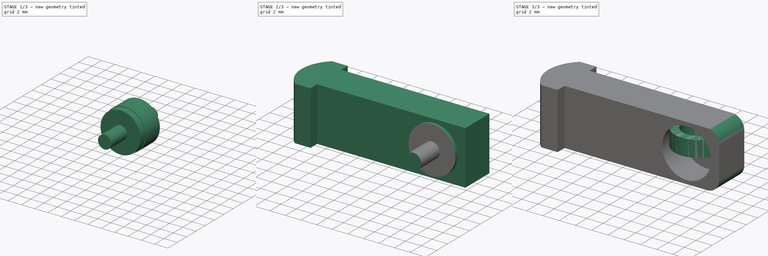
[diagram: build sequence overview — one tinted view per stage of 3, left to right]
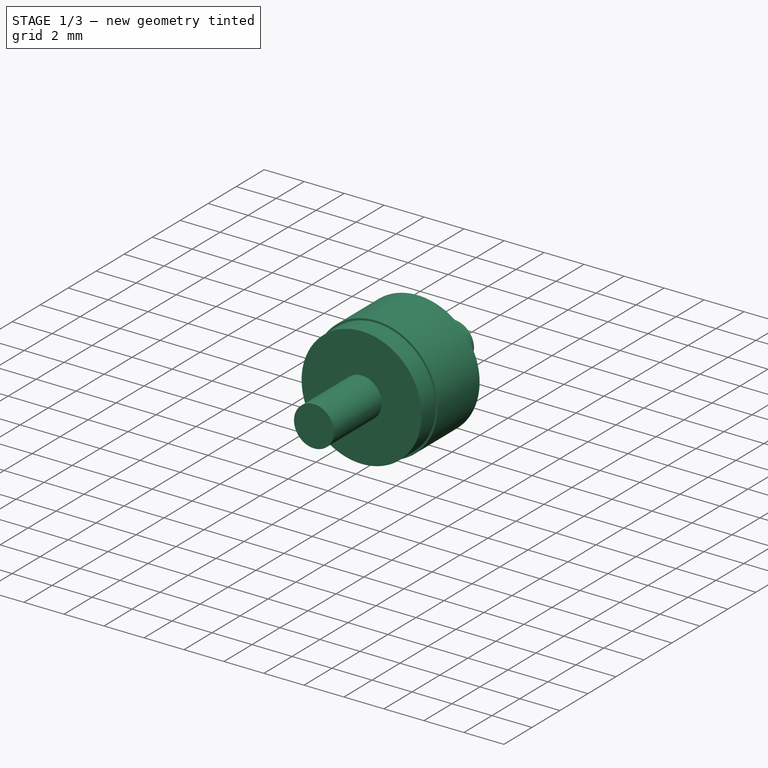
[diagram: stage 1 of 3 — iso view after this stage's code; geometry added in this stage tinted green]
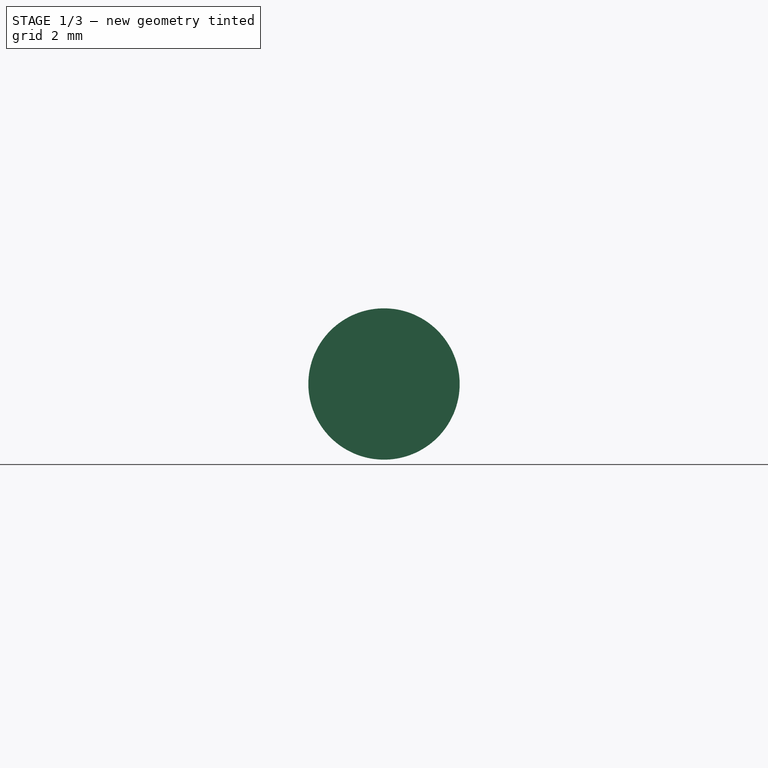
[diagram: stage 1 of 3 — front view after this stage's code; geometry added in this stage tinted green]
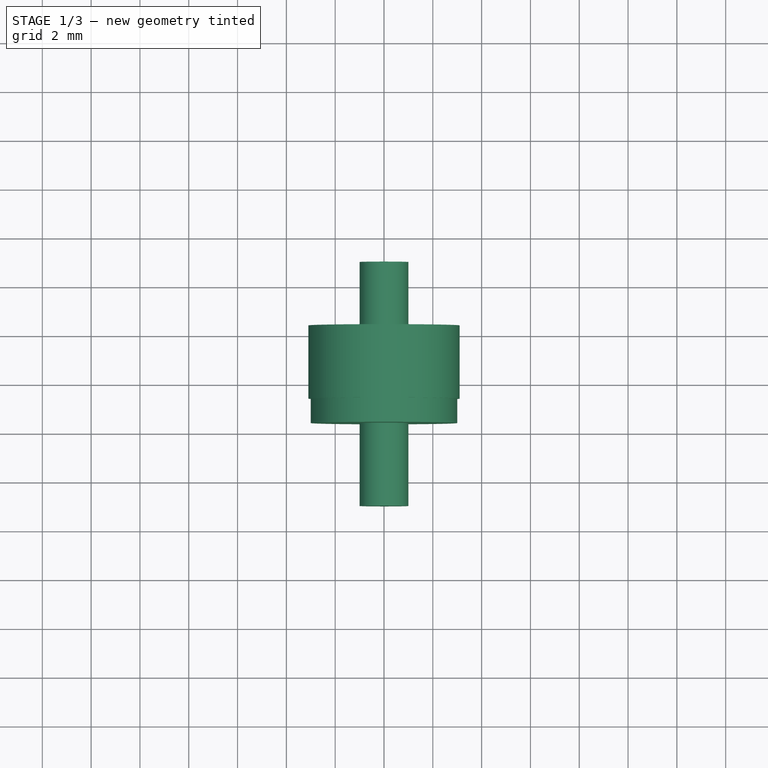
[diagram: stage 1 of 3 — top view after this stage's code; geometry added in this stage tinted green]
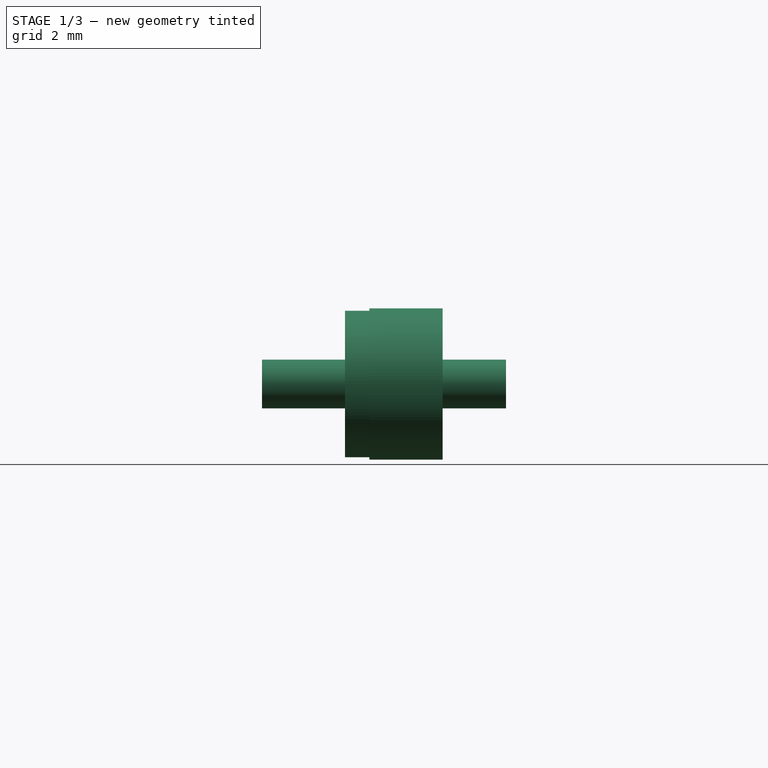
[diagram: stage 1 of 3 — right view after this stage's code; geometry added in this stage tinted green]
FCSTD DOCUMENT  (FreeCAD 0.18R15363 (Git))
Label: JackyTouchGachette
License: All rights reserved
LicenseURL: http://en.wikipedia.org/wiki/All_rights_reserved
objects: Sketcher::SketchObject×5, Part::Extrusion×5, Part::MultiFuse×1, Part::Cut×1, Part::Fillet×1
note: 13 computed .brp shape members not serialized (recipe doc carries the construction recipe); baked Part::Feature solids carry a one-line shape summary decoded from their .brp

FEATURE [Sketcher::SketchObject] Sketch001
  Placement = pos=(0,0,0) rot=(1,0,0;1.5708rad)
  sketch-geometry (1):
    g0: Circle CenterX=0 CenterY=0 CenterZ=0 NormalX=0 NormalY=0 NormalZ=1 AngleXU=0 Radius=3.1
  constraints (2):
    c: Radius(g0) = 3.1
    c: Coincident(g0,g-1)
FEATURE [Part::Extrusion] Extrude001  label="LogementAimant"
  Base = -> Sketch001
  Dir = (0,-1,0)
  DirMode = 2
  FaceMakerClass = Part::FaceMakerBullseye
  LengthFwd = 3
  LengthRev = 0
  Placement = pos=(0,0.4,0) rot=(0,0,1;0rad)
  Solid = true
  Symmetric = false
FEATURE [Sketcher::SketchObject] Sketch003
  ExternalGeometry = -> [Sketch001]
  Placement = pos=(0,0,0) rot=(1,0,0;1.5708rad)
  sketch-geometry (1):
    g0: Circle CenterX=0 CenterY=0 CenterZ=0 NormalX=0 NormalY=0 NormalZ=1 AngleXU=0 Radius=1
  constraints (2):
    c: Coincident(g0,g-3)
    c: Radius(g0) = 1
FEATURE [Part::Extrusion] Extrude003  label="PousseAimant"
  Base = -> Sketch003
  Dir = (0,-1,0)
  DirMode = 2
  FaceMakerClass = Part::FaceMakerBullseye
  LengthFwd = 10
  LengthRev = 0
  Placement = pos=(0,3,0) rot=(0,0,1;0rad)
  Solid = true
  Symmetric = false
FEATURE [Sketcher::SketchObject] Sketch004
  Placement = pos=(0,0,0) rot=(1,0,0;1.5708rad)
  sketch-geometry (1):
    g0: Circle CenterX=0 CenterY=0 CenterZ=0 NormalX=0 NormalY=0 NormalZ=1 AngleXU=0 Radius=3
  constraints (2):
    c: Coincident(g0,g-1)
    c: Radius(g0) = 3
FEATURE [Part::Extrusion] Extrude004  label="RetientAimant"
  Base = -> Sketch004
  Dir = (0,-1,2e-16)
  DirMode = 2
  FaceMakerClass = Part::FaceMakerBullseye
  LengthFwd = 1
  LengthRev = 0
  Placement = pos=(0,-2.6,0) rot=(0,0,1;0rad)
  Solid = true
  Symmetric = false
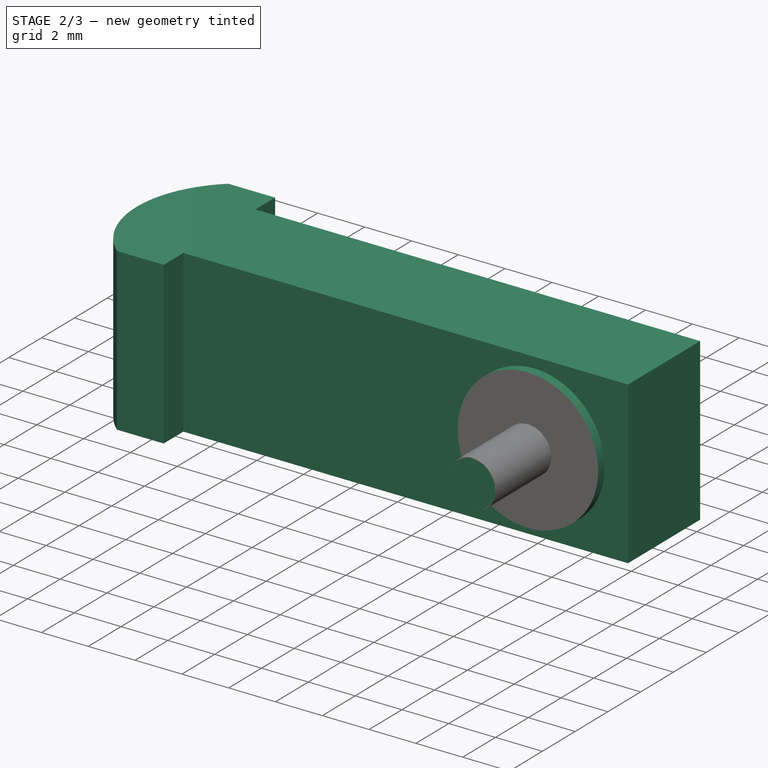
[diagram: stage 2 of 3 — iso view after this stage's code; geometry added in this stage tinted green]
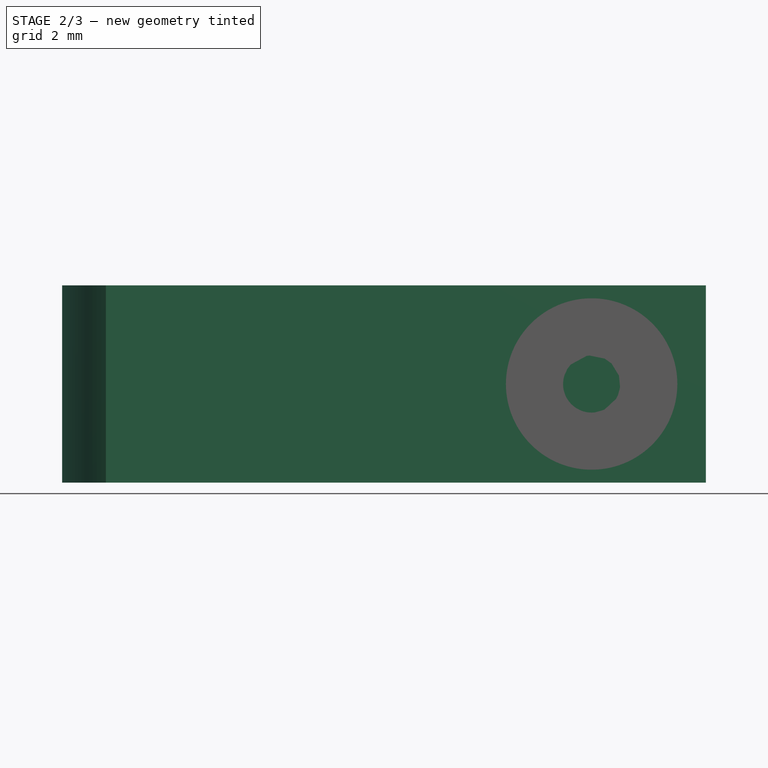
[diagram: stage 2 of 3 — front view after this stage's code; geometry added in this stage tinted green]
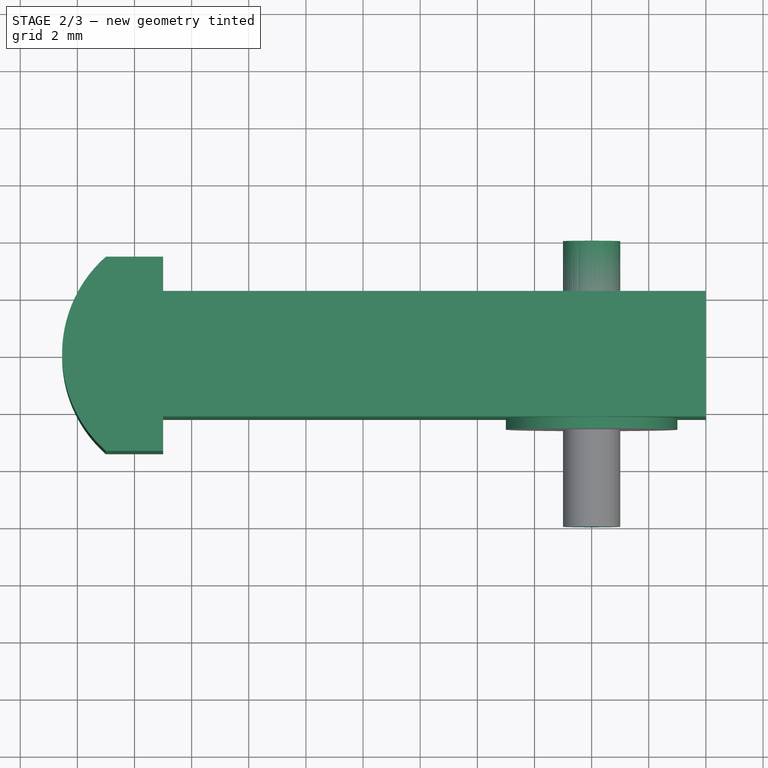
[diagram: stage 2 of 3 — top view after this stage's code; geometry added in this stage tinted green]
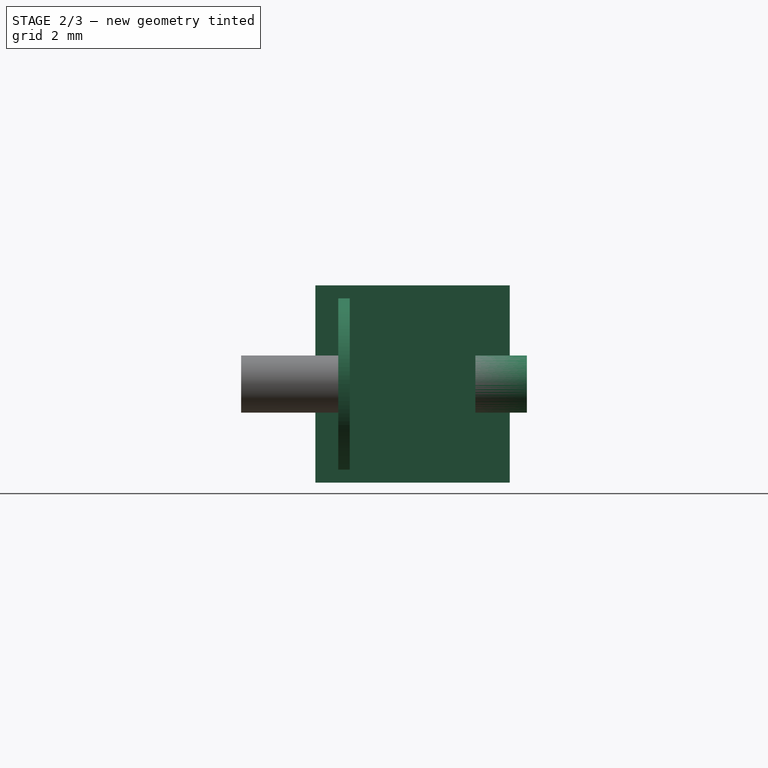
[diagram: stage 2 of 3 — right view after this stage's code; geometry added in this stage tinted green]
FEATURE [Sketcher::SketchObject] Sketch
  sketch-geometry (10):
    g0: LineSegment StartX=-15 StartY=2.2 StartZ=0 EndX=4 EndY=2.2 EndZ=0
    g1: LineSegment StartX=4 StartY=2.2 StartZ=0 EndX=4 EndY=-2.2 EndZ=0
    g2: LineSegment StartX=4 StartY=-2.2 StartZ=0 EndX=-15 EndY=-2.2 EndZ=0
    g3: LineSegment [constr] StartX=-15 StartY=-2.2 StartZ=0 EndX=-15 EndY=2.2 EndZ=0
    g4: LineSegment StartX=-15 StartY=2.2 StartZ=0 EndX=-15 EndY=3.4 EndZ=0
    g5: LineSegment StartX=-15 StartY=3.4 StartZ=0 EndX=-17 EndY=3.4 EndZ=0
    g6: LineSegment [constr] StartX=-17 StartY=3.4 StartZ=0 EndX=-17 EndY=-3.4 EndZ=0
    g7: LineSegment StartX=-17 StartY=-3.4 StartZ=0 EndX=-15 EndY=-3.4 EndZ=0
    g8: LineSegment StartX=-15 StartY=-3.4 StartZ=0 EndX=-15 EndY=-2.2 EndZ=0
    g9: ArcOfCircle CenterX=-14 CenterY=0 CenterZ=0 NormalX=0 NormalY=0 NormalZ=1 AngleXU=0 Radius=4.53431 StartAngle=2.29378 EndAngle=3.98941
  constraints (27):
    c: Coincident(g0,g1)
    c: Coincident(g1,g2)
    c: Coincident(g2,g3)
    c: Coincident(g3,g0)
    c: Horizontal(g0)
    c: Horizontal(g2)
    c: Vertical(g3)
    c: Symmetric(g1,g0,g-1)
    c: Vertical(g4)
    c: Horizontal(g5)
    c: Coincident(g6,g5)
    c: Vertical(g6)
    c: Coincident(g7,g6)
    c: Horizontal(g7)
    c: Coincident(g8,g7)
    c: Coincident(g8,g2)
    c: Coincident(g4,g0)
    c: Symmetric(g4,g7,g-1)
    c: Coincident(g5,g4)
    c: DistanceY(g1,g0) = 4.4
    c: DistanceY(g0,g4) = 1.2
    c: DistanceX(g5,g5) = 2
    c: DistanceX(g-1,g0) = 4
    c: DistanceX(g0,g-1) = 15
    c: Coincident(g9,g5)
    c: Coincident(g9,g6)
    c: DistanceX(g9) = -14
FEATURE [Part::Extrusion] Extrude  label="Body"
  Base = -> Sketch
  Dir = (0,0,1)
  DirMode = 2
  FaceMakerClass = Part::FaceMakerBullseye
  LengthFwd = 6.9
  LengthRev = 0
  Solid = true
  Symmetric = true
FEATURE [Part::MultiFuse] Fusion
  Placement = pos=(0,1,0) rot=(0,0,1;0rad)
  Shapes = -> [Extrude003,Extrude001,Extrude004]
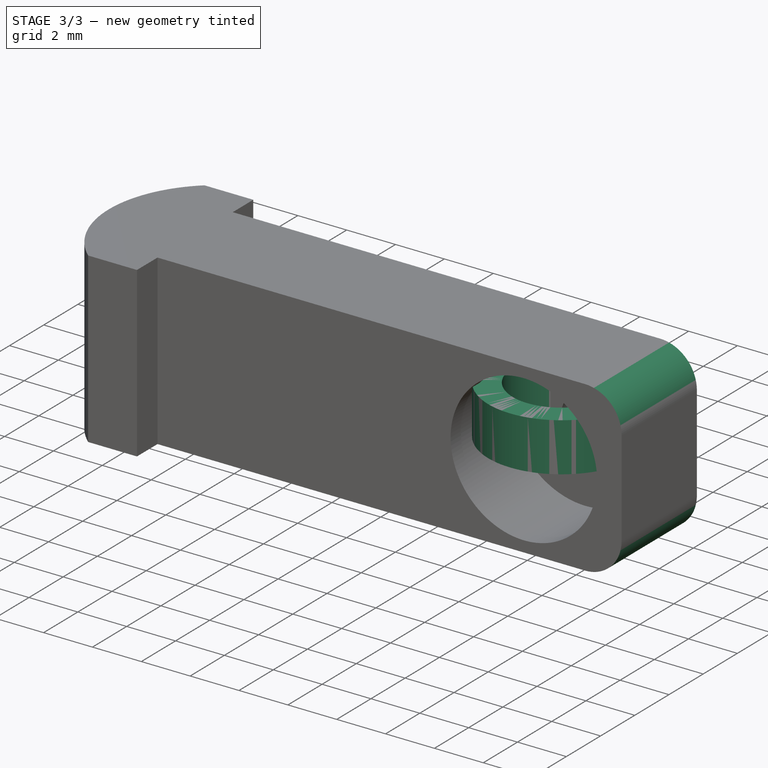
[diagram: stage 3 of 3 — iso view after this stage's code; geometry added in this stage tinted green]
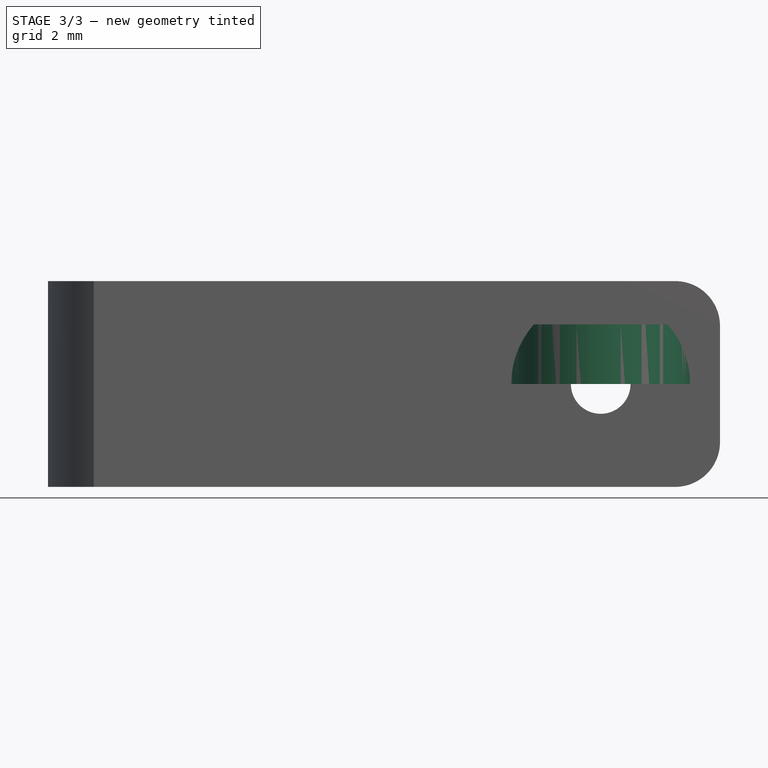
[diagram: stage 3 of 3 — front view after this stage's code; geometry added in this stage tinted green]
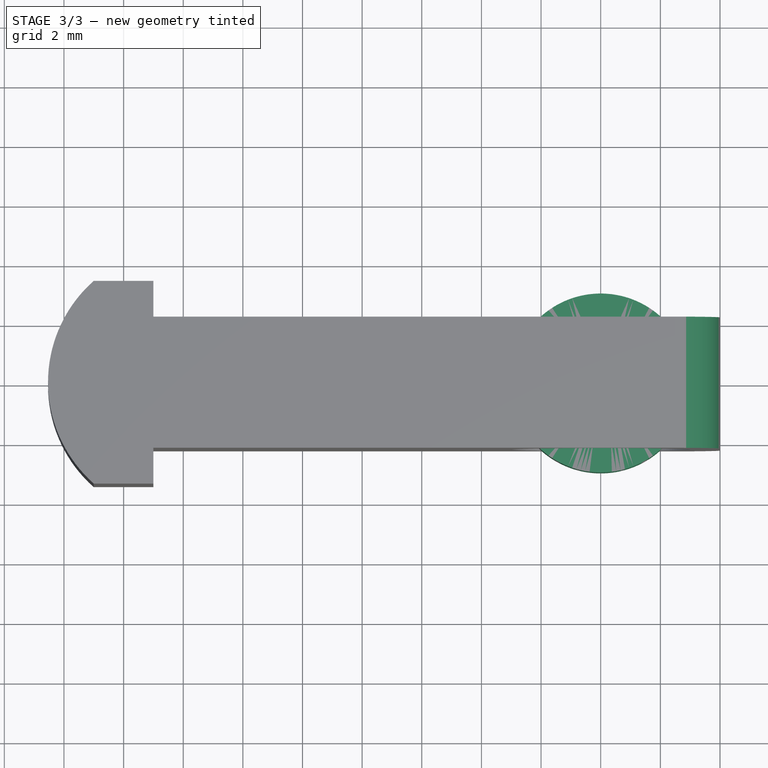
[diagram: stage 3 of 3 — top view after this stage's code; geometry added in this stage tinted green]
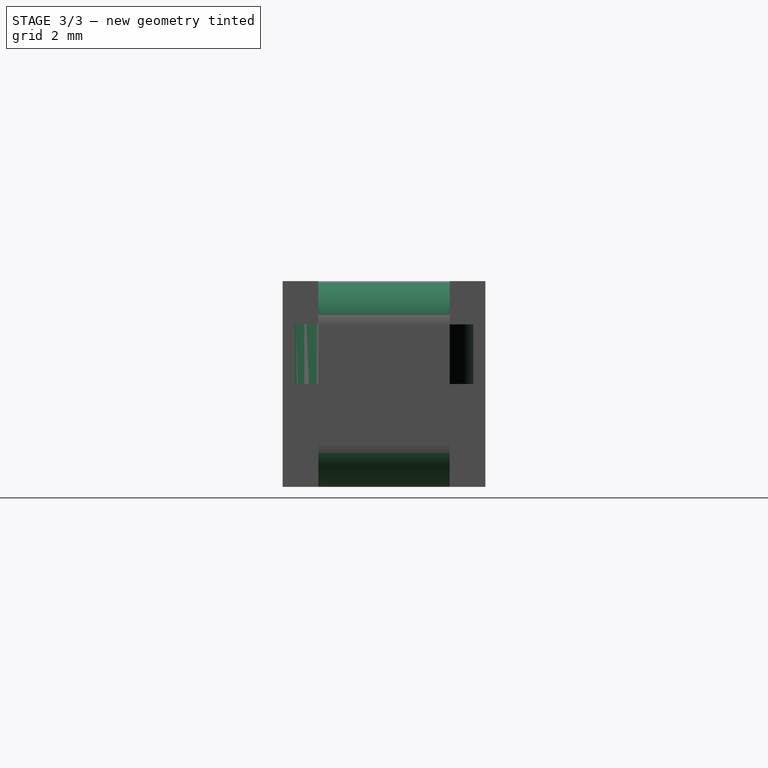
[diagram: stage 3 of 3 — right view after this stage's code; geometry added in this stage tinted green]
FEATURE [Sketcher::SketchObject] Sketch002
  sketch-geometry (2):
    g0: Circle CenterX=0 CenterY=0 CenterZ=0 NormalX=0 NormalY=0 NormalZ=1 AngleXU=0 Radius=2
    g1: Circle CenterX=0 CenterY=0 CenterZ=0 NormalX=0 NormalY=0 NormalZ=1 AngleXU=0 Radius=3
  constraints (4):
    c: Coincident(g1,g0)
    c: Radius(g0) = 2
    c: Coincident(g0,g-1)
    c: Radius(g1) = 3
FEATURE [Part::Extrusion] Extrude002  label="Bague"
  Base = -> Sketch002
  Dir = (0,0,1)
  DirMode = 2
  FaceMakerClass = Part::FaceMakerBullseye
  LengthFwd = 2
  LengthRev = 0
  Solid = true
  Symmetric = false
FEATURE [Part::Cut] Cut
  Base = -> Extrude
  Tool = -> Fusion
FEATURE [Part::Fillet] Fillet
  Base = -> Cut
  Edges = 2 edges r=1.5: [Edge12,Edge17]
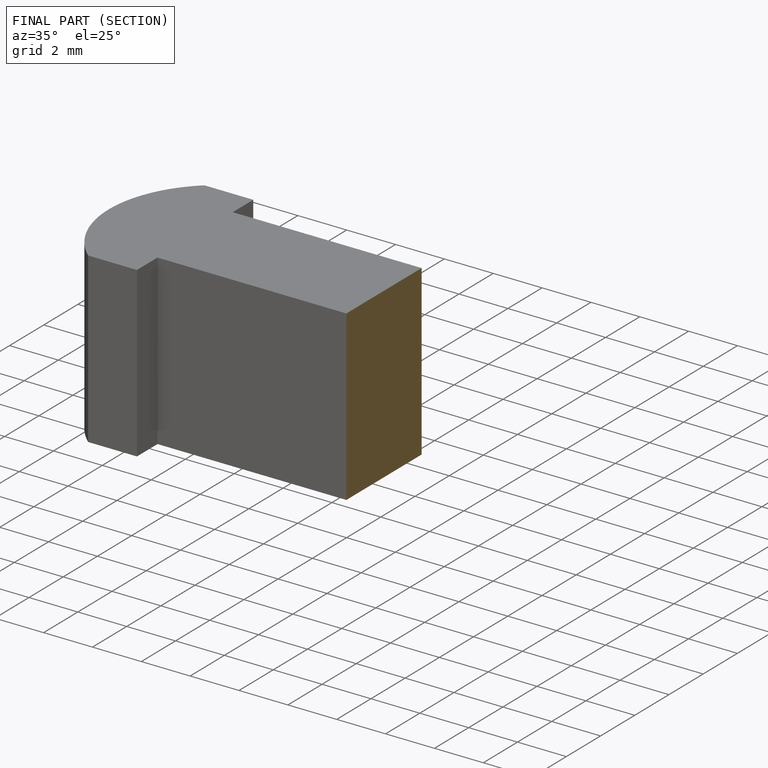
[diagram: finished part — half-section view (interior)]
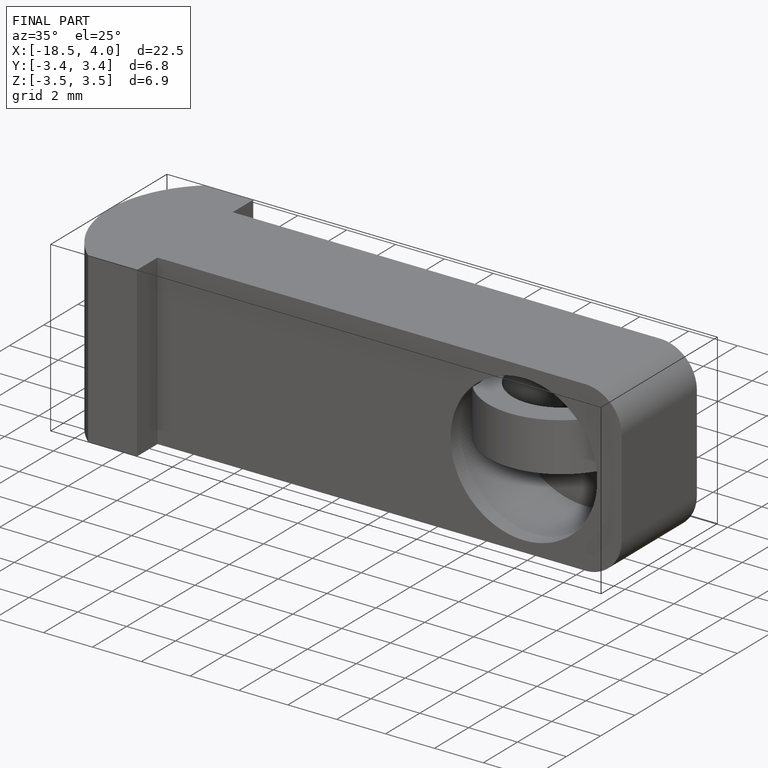
[diagram: finished part — iso view with bounding-box wireframe]
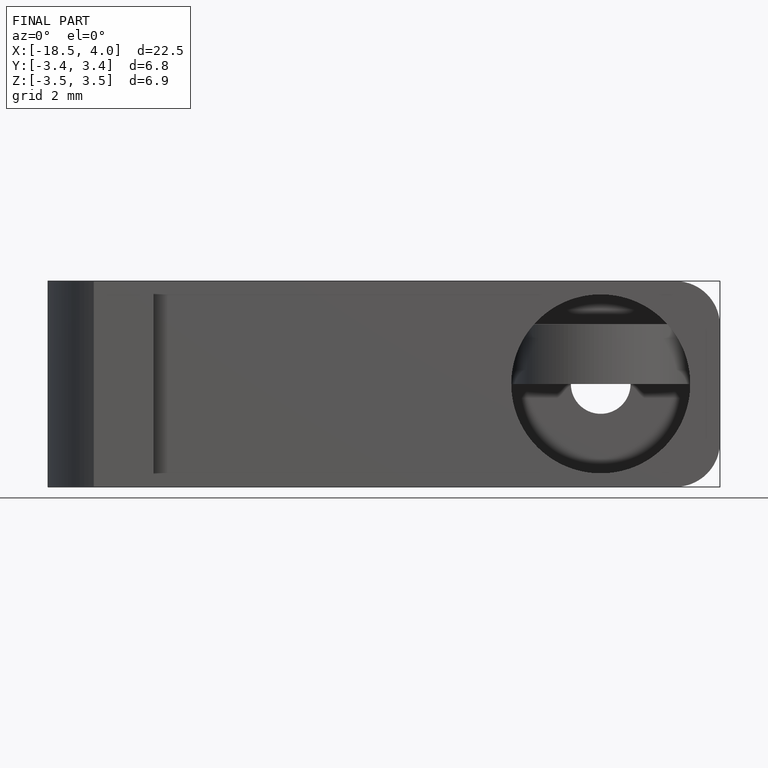
[diagram: finished part — front view with bounding-box wireframe]
